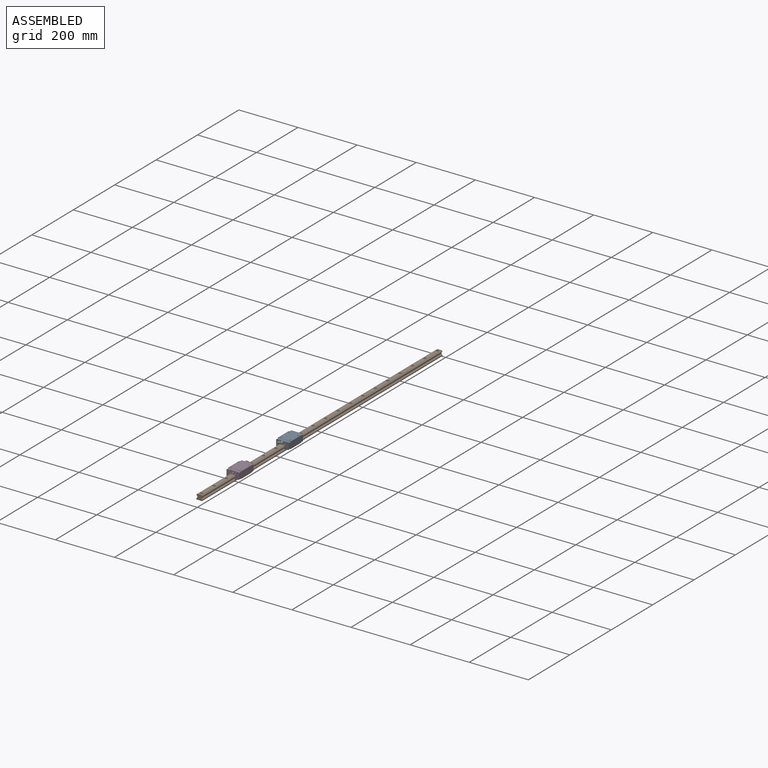
[diagram: assembled view]
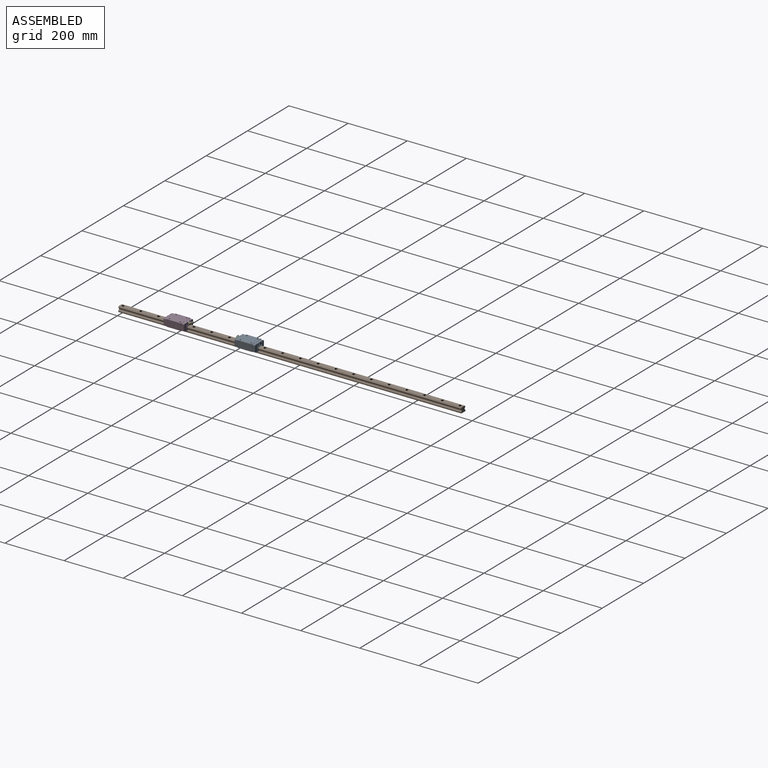
[diagram: assembled view, second angle]
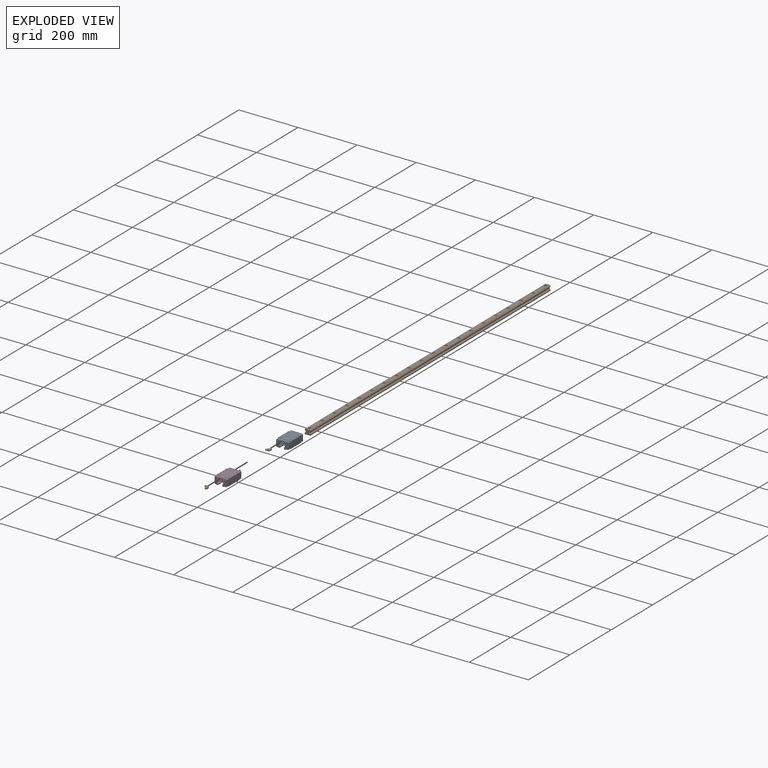
[diagram: exploded view]
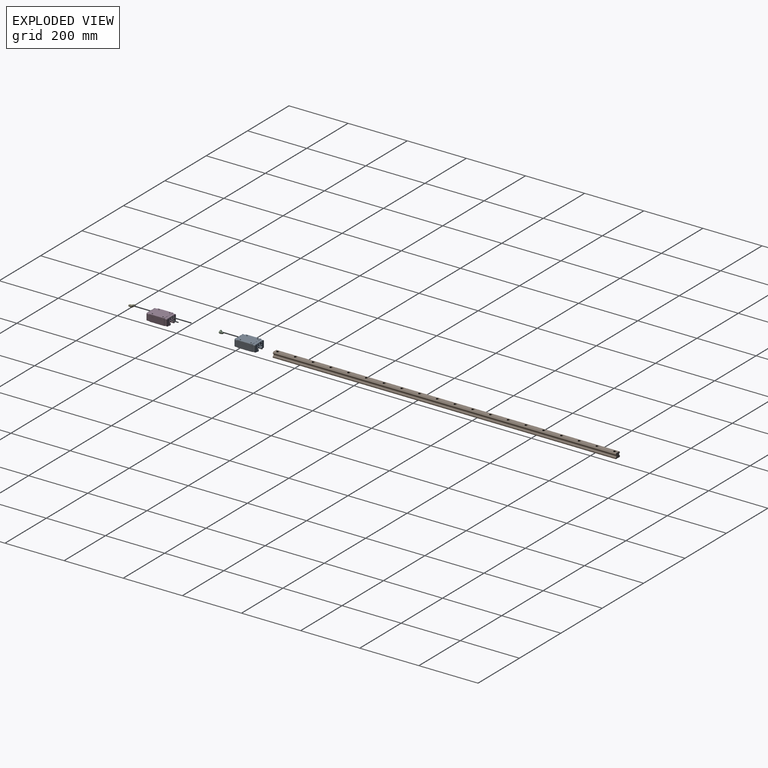
[diagram: exploded view, second angle]
ASSEMBLY  parts=5 mates=4
PART A: 166 faces, bbox 44x74x26 mm
  f0: torus R=1.37mm, axis (0,0,-1), area 5.4mm2, adj f1,f165
  f1: cylinder r=1.71mm len=3.43mm, axis (0,0,-1), area 13.4mm2, adj f0,f34
  f2: torus R=1.37mm, axis (0,0,-1), area 5.4mm2, adj f3,f164
  f3: cylinder r=1.71mm len=3.43mm, axis (0,0,-1), area 13.4mm2, adj f2,f34
  f4: torus R=1.37mm, axis (0,0,-1), area 5.4mm2, adj f5,f163
  f5: cylinder r=1.71mm len=3.43mm, axis (0,0,-1), area 13.4mm2, adj f4,f35
  f6: torus R=1.37mm, axis (0,0,-1), area 5.4mm2, adj f7,f162
  f7: cylinder r=1.71mm len=3.43mm, axis (0,0,-1), area 13.4mm2, adj f6,f35
  f8: cone r=1732.05mm half-angle=60deg, axis (0,1,0), area 21.9mm2, adj f9
  f9: cylinder r=2.46mm len=5.46mm, axis (0,1,0), area 84.3mm2, adj f8,f10
  f10: cone r=2.46mm half-angle=45deg, axis (0,1,0), area 13.1mm2, adj f9,f36
  f11: cone r=2.46mm half-angle=60deg, axis (0,-1,0), area 21.9mm2, adj f12
  f12: cylinder r=2.46mm len=5.46mm, axis (0,1,0), area 84.3mm2, adj f11,f13
  f13: cone r=3mm half-angle=45deg, axis (0,-1,0), area 13.1mm2, adj f12,f37
  f14: cylinder r=2.25mm len=4.5mm, axis (0,1,0), area 13.8mm2, adj f15,f36
  f15: torus R=1.93mm, axis (0,1,0), area 6.8mm2, adj f14,f58
  f16: torus R=1.93mm, axis (0,1,0), area 6.8mm2, adj f17,f121
  f17: cylinder r=2.25mm len=4.5mm, axis (0,1,0), area 13.8mm2, adj f16,f37
  f18: cylinder r=2.25mm len=4.5mm, axis (0,1,0), area 13.8mm2, adj f19,f36
  f19: torus R=1.93mm, axis (0,1,0), area 6.8mm2, adj f18,f59
  f20: torus R=1.93mm, axis (0,1,0), area 6.8mm2, adj f21,f120
  f21: cylinder r=2.25mm len=4.5mm, axis (0,1,0), area 13.8mm2, adj f20,f37
  f22: cone r=2.07mm half-angle=60deg, axis (0,0,1), area 15.5mm2, adj f23
  f23: cylinder r=2.07mm len=6.77mm, axis (0,0,-1), area 87.9mm2, adj f22,f24
  f24: cone r=2.5mm half-angle=45deg, axis (0,0,1), area 8.8mm2, adj f23,f70
  f25: cone r=2.07mm half-angle=60deg, axis (0,0,1), area 15.5mm2, adj f26
  f26: cylinder r=2.07mm len=6.77mm, axis (0,0,-1), area 87.9mm2, adj f25,f27
  f27: cone r=2.5mm half-angle=45deg, axis (0,0,1), area 8.8mm2, adj f26,f70
  f28: cone r=2.07mm half-angle=60deg, axis (0,0,1), area 15.5mm2, adj f29
  f29: cylinder r=2.07mm len=6.77mm, axis (0,0,-1), area 87.9mm2, adj f28,f30
  f30: cone r=2.5mm half-angle=45deg, axis (0,0,1), area 8.8mm2, adj f29,f71
  f31: cone r=2.07mm half-angle=60deg, axis (0,0,1), area 15.5mm2, adj f32
  f32: cylinder r=2.07mm len=6.77mm, axis (0,0,-1), area 87.9mm2, adj f31,f33
  f33: cone r=2.5mm half-angle=45deg, axis (0,0,1), area 8.8mm2, adj f32,f71
  f34: plane 50.8x7.89mm, normal (0,0,-1), area 382.2mm2, adj f1,f3,f63,f67,f77,f102
  f35: plane 50.8x7.89mm, normal (0,0,-1), area 382.2mm2, adj f5,f7,f62,f66,f78,f101
  f36: plane 42x23.68mm, normal (0,1,0), area 580mm2, adj f10,f14,f18,f38,f39,f41,f46,f47
  f37: plane 42x23.68mm, normal (0,-1,0), area 580mm2, adj f13,f17,f21,f42,f43,f45,f50,f52
  f38: plane 9.6x2mm, normal (-0.71,0,0.71), area 26.8mm2, adj f36,f39,f40,f56,f57,f90,f150,f151
  f39: plane 19.68x1mm, normal (-1,0,0), area 19.7mm2, adj f36,f38,f41,f160
  f40: plane 19.68x8.1mm, normal (-1,0,0), area 159.4mm2, adj f38,f41,f90,f161
  f41: plane 9.6x2mm, normal (-0.71,0,-0.71), area 27mm2, adj f36,f39,f40,f65,f90,f160,f161
  f42: plane 9.6x2mm, normal (-0.71,0,0.71), area 26.8mm2, adj f37,f44,f45,f54,f55,f89,f152,f153
  f43: plane 9.6x2mm, normal (-0.71,0,-0.71), area 27mm2, adj f37,f44,f45,f61,f89,f158,f159
  f44: plane 19.68x8.1mm, normal (-1,0,0), area 159.4mm2, adj f42,f43,f89,f158
  f45: plane 19.68x1mm, normal (-1,0,0), area 19.7mm2, adj f37,f42,f43,f159
  f46: plane 9.6x2mm, normal (0.71,0,0.71), area 26.8mm2, adj f36,f48,f49,f56,f57,f90,f150,f151
  f47: plane 9.6x2mm, normal (0.71,0,-0.71), area 27mm2, adj f36,f48,f49,f64,f90,f156,f157
  f48: plane 19.68x1mm, normal (1,0,0), area 19.7mm2, adj f36,f46,f47,f156
  f49: plane 19.68x8.1mm, normal (1,0,0), area 159.4mm2, adj f46,f47,f90,f157
  f50: plane 9.6x2mm, normal (0.71,0,0.71), area 26.8mm2, adj f37,f51,f52,f54,f55,f89,f152,f153
  f51: plane 19.68x8.1mm, normal (1,0,0), area 159.4mm2, adj f50,f53,f89,f154
  f52: plane 19.68x1mm, normal (1,0,0), area 19.7mm2, adj f37,f50,f53,f155
  f53: plane 9.6x2mm, normal (0.71,0,-0.71), area 27mm2, adj f37,f51,f52,f60,f89,f154,f155
  f54: plane 38x8.1mm, normal (0,0,1), area 307.8mm2, adj f42,f50,f89,f152
  f55: plane 38x1mm, normal (0,0,1), area 38mm2, adj f37,f42,f50,f153
  f56: plane 38x1mm, normal (0,0,1), area 38mm2, adj f36,f38,f46,f150
  f57: plane 38x8.1mm, normal (0,0,1), area 307.8mm2, adj f38,f46,f90,f151
  f58: plane 3.85x3.85mm, normal (0,1,0), area 8.2mm2, adj f15,f143,f144,f145,f146,f147,f148
  f59: plane 3.85x3.85mm, normal (0,1,0), area 8.2mm2, adj f19,f136,f137,f138,f139,f140,f141
  f60: plane 11.6x10.52mm, normal (0,0,-1), area 108mm2, adj f37,f53,f66,f69,f89,f98,f101
  f61: plane 11.6x10.52mm, normal (0,0,-1), area 108mm2, adj f37,f43,f67,f69,f89,f97,f102
  f62: plane 7.89x0.07mm, normal (0,-1,0), area 0.5mm2, adj f35,f64,f78,f101
  f63: plane 7.89x0.07mm, normal (0,-1,0), area 0.5mm2, adj f34,f65,f77,f102
  f64: plane 11.6x10.52mm, normal (0,0,-1), area 108mm2, adj f36,f47,f62,f68,f90,f94,f101
  f65: plane 11.6x10.52mm, normal (0,0,-1), area 108mm2, adj f36,f41,f63,f68,f90,f95,f102
  f66: plane 7.89x0.07mm, normal (0,1,0), area 0.5mm2, adj f35,f60,f78,f101
  f67: plane 7.89x0.07mm, normal (0,1,0), area 0.5mm2, adj f34,f61,f77,f102
  f68: plane 24x14.48mm, normal (0,1,0), area 149.3mm2, adj f64,f65,f91,f92,f93,f94,f95,f101
  f69: plane 24x14.48mm, normal (0,-1,0), area 149.3mm2, adj f60,f61,f96,f97,f98,f99,f100,f101
  f70: plane 50.8x13.5mm, normal (0,0,1), area 646.5mm2, adj f24,f27,f84,f85,f89,f90
  f71: plane 50.8x13.5mm, normal (0,0,1), area 646.5mm2, adj f30,f33,f87,f88,f89,f90
  f72: plane 50.8x7mm, normal (-1,0,0), area 355.6mm2, adj f73,f88,f89,f90
  f73: plane 50.8x0.3mm, normal (-0.71,0,-0.71), area 21.6mm2, adj f72,f74,f89,f90
  f74: plane 50.8x15.38mm, normal (-1,0,0), area 781.5mm2, adj f73,f75,f89,f90
  f75: plane 50.8x1mm, normal (-0.71,0,-0.71), area 71.8mm2, adj f74,f76,f89,f90
  f76: plane 50.8x4.4mm, normal (0,0,-1), area 223.5mm2, adj f75,f77,f89,f90
  f77: plane 50.8x0.27mm, normal (1,0,0), area 13.7mm2, adj f34,f63,f67,f76,f89,f90
  f78: plane 50.8x0.27mm, normal (-1,0,0), area 13.7mm2, adj f35,f62,f66,f79,f89,f90
  f79: plane 50.8x4.4mm, normal (0,0,-1), area 223.5mm2, adj f78,f80,f89,f90
  f80: plane 50.8x1mm, normal (0.71,0,-0.71), area 71.8mm2, adj f79,f81,f89,f90
  f81: plane 50.8x15.38mm, normal (1,0,0), area 781.5mm2, adj f80,f82,f89,f90
  f82: plane 50.8x0.3mm, normal (0.71,0,-0.71), area 21.6mm2, adj f81,f83,f89,f90
  f83: plane 50.8x7mm, normal (1,0,0), area 355.6mm2, adj f82,f84,f89,f90
  f84: plane 50.8x1mm, normal (0.71,0,0.71), area 71.8mm2, adj f70,f83,f89,f90
  f85: plane 50.8x0.5mm, normal (-0.71,0,0.71), area 35.9mm2, adj f70,f86,f89,f90
  f86: plane 50.8x14mm, normal (0,0,1), area 711.2mm2, adj f85,f87,f89,f90
  f87: plane 50.8x0.5mm, normal (0.71,0,0.71), area 35.9mm2, adj f71,f86,f89,f90
  f88: plane 50.8x1mm, normal (-0.71,0,0.71), area 71.8mm2, adj f71,f72,f89,f90
  f89: plane 44x24.68mm, normal (0,-1,0), area 73.7mm2, adj f42,f43,f44,f50,f51,f53,f54,f60
  f90: plane 44x24.68mm, normal (0,1,0), area 73.7mm2, adj f38,f40,f41,f46,f47,f49,f57,f64
  f91: plane 2x1mm, normal (-0.71,0,0.71), area 2.8mm2, adj f36,f68,f92,f95
  f92: plane 22x2mm, normal (0,0,1), area 44mm2, adj f36,f68,f91,f93
  f93: plane 2x1mm, normal (0.71,0,0.71), area 2.8mm2, adj f36,f68,f92,f94
  f94: plane 13.48x2mm, normal (1,0,0), area 27mm2, adj f36,f64,f68,f93
  f95: plane 13.48x2mm, normal (-1,0,0), area 27mm2, adj f36,f65,f68,f91
  f96: plane 2x1mm, normal (-0.71,0,0.71), area 2.8mm2, adj f37,f69,f97,f100
  f97: plane 13.48x2mm, normal (-1,0,0), area 27mm2, adj f37,f61,f69,f96
  f98: plane 13.48x2mm, normal (1,0,0), area 27mm2, adj f37,f60,f69,f99
  f99: plane 2x1mm, normal (0.71,0,0.71), area 2.8mm2, adj f37,f69,f98,f100
  f100: plane 22x2mm, normal (0,0,1), area 44mm2, adj f37,f69,f96,f99
  f101: plane 74x1.93mm, normal (-0.71,0,-0.71), area 197.3mm2, adj f35,f60,f62,f64,f66,f68,f69,f103
  f102: plane 74x1.93mm, normal (0.71,0,-0.71), area 197.3mm2, adj f34,f61,f63,f65,f67,f68,f69,f119
  f103: plane 74x2.93mm, normal (-1,0,0), area 216.8mm2, adj f68,f69,f101,f104
  f104: plane 74x1.22mm, normal (-0.71,0,0.71), area 127.2mm2, adj f68,f69,f103,f105
  f105: cylinder r=2.06mm len=74mm, axis (0,1,0), area 192.5mm2, adj f68,f69,f104,f106
  f106: plane 74x0.52mm, normal (-0.71,0,0.71), area 53.9mm2, adj f68,f69,f105,f107
  f107: plane 74x1.33mm, normal (-1,0,0), area 98.5mm2, adj f68,f69,f106,f108
  f108: plane 74x0.53mm, normal (-0.71,0,-0.71), area 55.2mm2, adj f68,f69,f107,f109
  f109: cylinder r=2.06mm len=74mm, axis (0,1,0), area 190.6mm2, adj f68,f69,f108,f110
  f110: plane 74x0.61mm, normal (-0.71,0,-0.71), area 63.6mm2, adj f68,f69,f109,f111
  f111: plane 74x14.32mm, normal (0,0,-1), area 1059.7mm2, adj f68,f69,f110,f112
  f112: plane 74x0.61mm, normal (0.71,0,-0.71), area 63.6mm2, adj f68,f69,f111,f113
  f113: cylinder r=2.06mm len=74mm, axis (0,1,0), area 190.6mm2, adj f68,f69,f112,f114
  f114: plane 74x0.53mm, normal (0.71,0,-0.71), area 55.2mm2, adj f68,f69,f113,f115
  f115: plane 74x1.33mm, normal (1,0,0), area 98.5mm2, adj f68,f69,f114,f116
  f116: plane 74x0.52mm, normal (0.71,0,0.71), area 53.9mm2, adj f68,f69,f115,f117
  f117: cylinder r=2.06mm len=74mm, axis (0,1,0), area 192.5mm2, adj f68,f69,f116,f118
  f118: plane 74x1.22mm, normal (0.71,0,0.71), area 127.2mm2, adj f68,f69,f117,f119
  f119: plane 74x2.93mm, normal (1,0,0), area 216.8mm2, adj f68,f69,f102,f118
  f120: plane 3.85x3.85mm, normal (0,-1,0), area 8.2mm2, adj f20,f122,f123,f124,f125,f126,f127
  f121: plane 3.85x3.85mm, normal (0,-1,0), area 8.2mm2, adj f16,f129,f130,f131,f132,f133,f134
  f122: plane 1x0.65mm, normal (0.5,0,-0.87), area 0.8mm2, adj f120,f123,f127,f128
  f123: plane 1x0.65mm, normal (-0.5,0,-0.87), area 0.8mm2, adj f120,f122,f124,f128
  f124: plane 1.15x0.65mm, normal (-1,0,0), area 0.8mm2, adj f120,f123,f125,f128
  f125: plane 1x0.65mm, normal (-0.5,0,0.87), area 0.8mm2, adj f120,f124,f126,f128
  f126: plane 1x0.65mm, normal (0.5,0,0.87), area 0.8mm2, adj f120,f125,f127,f128
  f127: plane 1.15x0.65mm, normal (1,0,0), area 0.8mm2, adj f120,f122,f126,f128
  f128: plane 2.31x2mm, normal (0,-1,0), area 3.5mm2, adj f122,f123,f124,f125,f126,f127
  f129: plane 1x0.65mm, normal (0.5,0,-0.87), area 0.8mm2, adj f121,f130,f134,f135
  f130: plane 1x0.65mm, normal (-0.5,0,-0.87), area 0.8mm2, adj f121,f129,f131,f135
  f131: plane 1.15x0.65mm, normal (-1,0,0), area 0.8mm2, adj f121,f130,f132,f135
  f132: plane 1x0.65mm, normal (-0.5,0,0.87), area 0.8mm2, adj f121,f131,f133,f135
  f133: plane 1x0.65mm, normal (0.5,0,0.87), area 0.8mm2, adj f121,f132,f134,f135
  f134: plane 1.15x0.65mm, normal (1,0,0), area 0.8mm2, adj f121,f129,f133,f135
  f135: plane 2.31x2mm, normal (0,-1,0), area 3.5mm2, adj f129,f130,f131,f132,f133,f134
  f136: plane 1x0.65mm, normal (0.5,0,-0.87), area 0.8mm2, adj f59,f137,f141,f142
  f137: plane 1.15x0.65mm, normal (1,0,0), area 0.8mm2, adj f59,f136,f138,f142
  f138: plane 1x0.65mm, normal (0.5,0,0.87), area 0.8mm2, adj f59,f137,f139,f142
  f139: plane 1x0.65mm, normal (-0.5,0,0.87), area 0.8mm2, adj f59,f138,f140,f142
  f140: plane 1.15x0.65mm, normal (-1,0,0), area 0.8mm2, adj f59,f139,f141,f142
  f141: plane 1x0.65mm, normal (-0.5,0,-0.87), area 0.8mm2, adj f59,f136,f140,f142
  f142: plane 2.31x2mm, normal (0,1,0), area 3.5mm2, adj f136,f137,f138,f139,f140,f141
  f143: plane 1x0.65mm, normal (0.5,0,-0.87), area 0.8mm2, adj f58,f144,f148,f149
  f144: plane 1.15x0.65mm, normal (1,0,0), area 0.8mm2, adj f58,f143,f145,f149
  f145: plane 1x0.65mm, normal (0.5,0,0.87), area 0.8mm2, adj f58,f144,f146,f149
  f146: plane 1x0.65mm, normal (-0.5,0,0.87), area 0.8mm2, adj f58,f145,f147,f149
  f147: plane 1.15x0.65mm, normal (-1,0,0), area 0.8mm2, adj f58,f146,f148,f149
  f148: plane 1x0.65mm, normal (-0.5,0,-0.87), area 0.8mm2, adj f58,f143,f147,f149
  f149: plane 2.31x2mm, normal (0,1,0), area 3.5mm2, adj f143,f144,f145,f146,f147,f148
  f150: plane 39x0.5mm, normal (0,-1,0), area 19.3mm2, adj f38,f46,f56,f151
  f151: plane 39x0.5mm, normal (0,0.71,0.71), area 27.2mm2, adj f38,f46,f57,f150
  f152: plane 39x0.5mm, normal (0,-0.71,0.71), area 27.2mm2, adj f42,f50,f54,f153
  f153: plane 39x0.5mm, normal (0,1,0), area 19.2mm2, adj f42,f50,f55,f152
  f154: plane 20.68x0.5mm, normal (0.71,-0.71,0), area 14.3mm2, adj f50,f51,f53,f155
  f155: plane 20.68x0.5mm, normal (0,1,0), area 10.1mm2, adj f50,f52,f53,f154
  f156: plane 20.68x0.5mm, normal (0,-1,0), area 10.1mm2, adj f46,f47,f48,f157
  f157: plane 20.68x0.5mm, normal (0.71,0.71,0), area 14.3mm2, adj f46,f47,f49,f156
  f158: plane 20.68x0.5mm, normal (-0.71,-0.71,0), area 14.3mm2, adj f42,f43,f44,f159
  f159: plane 20.68x0.5mm, normal (0,1,0), area 10.1mm2, adj f42,f43,f45,f158
  f160: plane 20.68x0.5mm, normal (0,-1,0), area 10.1mm2, adj f38,f39,f41,f161
  f161: plane 20.68x0.5mm, normal (-0.71,0.71,0), area 14.3mm2, adj f38,f40,f41,f160
  f162: plane 2.74x2.74mm, normal (0,0,-1), area 5.9mm2, adj f6
  f163: plane 2.74x2.74mm, normal (0,0,-1), area 5.9mm2, adj f4
  f164: plane 2.74x2.74mm, normal (0,0,-1), area 5.9mm2, adj f2
  f165: plane 2.74x2.74mm, normal (0,0,-1), area 5.9mm2, adj f0
PART B: 150 faces, bbox 20x1160x18 mm
  f0: plane 10x0.5mm, normal (0.71,0,-0.71), area 6.3mm2, adj f64,f66,f88,f147
  f1: plane 56.68x5mm, normal (0,0,-1), area 274mm2, adj f2,f3,f144,f147
  f2: plane 60x0.5mm, normal (-0.71,0,-0.71), area 40.8mm2, adj f1,f68,f144,f147
  f3: plane 60x0.5mm, normal (0.71,0,-0.71), area 40.8mm2, adj f1,f64,f144,f147
  f4: plane 56.68x5mm, normal (0,0,-1), area 274mm2, adj f5,f6,f141,f144
  f5: plane 60x0.5mm, normal (-0.71,0,-0.71), area 40.8mm2, adj f4,f68,f141,f144
  f6: plane 60x0.5mm, normal (0.71,0,-0.71), area 40.8mm2, adj f4,f64,f141,f144
  f7: plane 56.68x5mm, normal (0,0,-1), area 274mm2, adj f8,f9,f138,f141
  f8: plane 60x0.5mm, normal (-0.71,0,-0.71), area 40.8mm2, adj f7,f68,f138,f141
  f9: plane 60x0.5mm, normal (0.71,0,-0.71), area 40.8mm2, adj f7,f64,f138,f141
  f10: plane 56.68x5mm, normal (0,0,-1), area 274mm2, adj f11,f12,f135,f138
  f11: plane 60x0.5mm, normal (-0.71,0,-0.71), area 40.8mm2, adj f10,f68,f135,f138
  f12: plane 60x0.5mm, normal (0.71,0,-0.71), area 40.8mm2, adj f10,f64,f135,f138
  f13: plane 56.68x5mm, normal (0,0,-1), area 274mm2, adj f14,f15,f132,f135
  f14: plane 60x0.5mm, normal (-0.71,0,-0.71), area 40.8mm2, adj f13,f68,f132,f135
  f15: plane 60x0.5mm, normal (0.71,0,-0.71), area 40.8mm2, adj f13,f64,f132,f135
  f16: plane 56.68x5mm, normal (0,0,-1), area 274mm2, adj f17,f18,f129,f132
  f17: plane 60x0.5mm, normal (-0.71,0,-0.71), area 40.8mm2, adj f16,f68,f129,f132
  f18: plane 60x0.5mm, normal (0.71,0,-0.71), area 40.8mm2, adj f16,f64,f129,f132
  f19: plane 56.68x5mm, normal (0,0,-1), area 274mm2, adj f20,f21,f126,f129
  f20: plane 60x0.5mm, normal (-0.71,0,-0.71), area 40.8mm2, adj f19,f68,f126,f129
  f21: plane 60x0.5mm, normal (0.71,0,-0.71), area 40.8mm2, adj f19,f64,f126,f129
  f22: plane 56.68x5mm, normal (0,0,-1), area 274mm2, adj f23,f24,f123,f126
  f23: plane 60x0.5mm, normal (-0.71,0,-0.71), area 40.8mm2, adj f22,f68,f123,f126
  f24: plane 60x0.5mm, normal (0.71,0,-0.71), area 40.8mm2, adj f22,f64,f123,f126
  f25: plane 56.68x5mm, normal (0,0,-1), area 274mm2, adj f26,f27,f120,f123
  f26: plane 60x0.5mm, normal (-0.71,0,-0.71), area 40.8mm2, adj f25,f68,f120,f123
  f27: plane 60x0.5mm, normal (0.71,0,-0.71), area 40.8mm2, adj f25,f64,f120,f123
  f28: plane 56.68x5mm, normal (0,0,-1), area 274mm2, adj f29,f30,f117,f120
  f29: plane 60x0.5mm, normal (-0.71,0,-0.71), area 40.8mm2, adj f28,f68,f117,f120
  f30: plane 60x0.5mm, normal (0.71,0,-0.71), area 40.8mm2, adj f28,f64,f117,f120
  f31: plane 56.68x5mm, normal (0,0,-1), area 274mm2, adj f32,f33,f114,f117
  f32: plane 60x0.5mm, normal (-0.71,0,-0.71), area 40.8mm2, adj f31,f68,f114,f117
  f33: plane 60x0.5mm, normal (0.71,0,-0.71), area 40.8mm2, adj f31,f64,f114,f117
  f34: plane 56.68x5mm, normal (0,0,-1), area 274mm2, adj f35,f36,f111,f114
  f35: plane 60x0.5mm, normal (-0.71,0,-0.71), area 40.8mm2, adj f34,f68,f111,f114
  f36: plane 60x0.5mm, normal (0.71,0,-0.71), area 40.8mm2, adj f34,f64,f111,f114
  f37: plane 56.68x5mm, normal (0,0,-1), area 274mm2, adj f38,f39,f108,f111
  f38: plane 60x0.5mm, normal (-0.71,0,-0.71), area 40.8mm2, adj f37,f68,f108,f111
  f39: plane 60x0.5mm, normal (0.71,0,-0.71), area 40.8mm2, adj f37,f64,f108,f111
  f40: plane 56.68x5mm, normal (0,0,-1), area 274mm2, adj f41,f42,f105,f108
  f41: plane 60x0.5mm, normal (-0.71,0,-0.71), area 40.8mm2, adj f40,f68,f105,f108
  f42: plane 60x0.5mm, normal (0.71,0,-0.71), area 40.8mm2, adj f40,f64,f105,f108
  f43: plane 56.68x5mm, normal (0,0,-1), area 274mm2, adj f44,f45,f102,f105
  f44: plane 60x0.5mm, normal (-0.71,0,-0.71), area 40.8mm2, adj f43,f68,f102,f105
  f45: plane 60x0.5mm, normal (0.71,0,-0.71), area 40.8mm2, adj f43,f64,f102,f105
  f46: plane 56.68x5mm, normal (0,0,-1), area 274mm2, adj f47,f48,f99,f102
  f47: plane 60x0.5mm, normal (-0.71,0,-0.71), area 40.8mm2, adj f46,f68,f99,f102
  f48: plane 60x0.5mm, normal (0.71,0,-0.71), area 40.8mm2, adj f46,f64,f99,f102
  f49: plane 56.68x5mm, normal (0,0,-1), area 274mm2, adj f50,f51,f96,f99
  f50: plane 60x0.5mm, normal (-0.71,0,-0.71), area 40.8mm2, adj f49,f68,f96,f99
  f51: plane 60x0.5mm, normal (0.71,0,-0.71), area 40.8mm2, adj f49,f64,f96,f99
  f52: plane 56.68x5mm, normal (0,0,-1), area 274mm2, adj f53,f54,f93,f96
  f53: plane 60x0.5mm, normal (-0.71,0,-0.71), area 40.8mm2, adj f52,f68,f93,f96
  f54: plane 60x0.5mm, normal (0.71,0,-0.71), area 40.8mm2, adj f52,f64,f93,f96
  f55: plane 56.68x5mm, normal (0,0,-1), area 274mm2, adj f56,f57,f90,f93
  f56: plane 60x0.5mm, normal (-0.71,0,-0.71), area 40.8mm2, adj f55,f68,f90,f93
  f57: plane 60x0.5mm, normal (0.71,0,-0.71), area 40.8mm2, adj f55,f64,f90,f93
  f58: plane 8.34x5mm, normal (0,0,-1), area 37mm2, adj f59,f65,f89,f90
  f59: plane 10x0.5mm, normal (-0.71,0,-0.71), area 6.3mm2, adj f58,f68,f89,f90
  f60: plane 1160x2.93mm, normal (-1,0,0), area 3398mm2, adj f61,f87,f88,f89
  f61: plane 1160x3.45mm, normal (-0.71,0,0.71), area 5659.5mm2, adj f60,f62,f88,f89
  f62: plane 1160x3mm, normal (-1,0,0), area 3480.1mm2, adj f61,f63,f88,f89
  f63: plane 1160x1mm, normal (-0.71,0,-0.71), area 1640.5mm2, adj f62,f64,f88,f89
  f64: plane 1160x6mm, normal (0,0,-1), area 6960mm2, adj f0,f3,f6,f9,f12,f15,f18,f21
  f65: plane 10x0.5mm, normal (0.71,0,-0.71), area 6.3mm2, adj f58,f64,f89,f90
  f66: plane 8.34x5mm, normal (0,0,-1), area 37mm2, adj f0,f67,f88,f147
  f67: plane 10x0.5mm, normal (-0.71,0,-0.71), area 6.3mm2, adj f66,f68,f88,f147
  f68: plane 1160x6mm, normal (0,0,-1), area 6960mm2, adj f2,f5,f8,f11,f14,f17,f20,f23
  f69: plane 1160x1mm, normal (0.71,0,-0.71), area 1640.5mm2, adj f68,f70,f88,f89
  f70: plane 1160x3mm, normal (1,0,0), area 3480.1mm2, adj f69,f71,f88,f89
  f71: plane 1160x3.45mm, normal (0.71,0,0.71), area 5659.5mm2, adj f70,f72,f88,f89
  f72: plane 1160x2.93mm, normal (1,0,0), area 3398mm2, adj f71,f73,f88,f89
  f73: plane 1160x1.22mm, normal (0.71,0,-0.71), area 1996.3mm2, adj f72,f74,f88,f89
  f74: cylinder r=2.06mm len=1160mm, axis (0,-1,0), area 3002.1mm2, adj f73,f75,f88,f89
  f75: plane 1160x0.53mm, normal (0.7,0,-0.72), area 854.9mm2, adj f74,f76,f88,f89
  f76: plane 1160x1.33mm, normal (1,0,0), area 1543.8mm2, adj f75,f77,f88,f89
  f77: plane 1160x0.53mm, normal (0.71,0,0.71), area 865.1mm2, adj f76,f78,f88,f89
  f78: cylinder r=2.06mm len=1160mm, axis (0,-1,0), area 2987.4mm2, adj f77,f79,f88,f89
  f79: plane 1160x0.61mm, normal (0.71,0,0.71), area 997.2mm2, adj f78,f80,f88,f89
  f80: plane 1160x14.32mm, normal (0,0,1), area 15193.6mm2, adj f79,f81,f88,f89,f92,f95,f98,f101
  f81: plane 1160x0.61mm, normal (-0.71,0,0.71), area 997.2mm2, adj f80,f82,f88,f89
  f82: cylinder r=2.06mm len=1160mm, axis (0,-1,0), area 2987.4mm2, adj f81,f83,f88,f89
  f83: plane 1160x0.53mm, normal (-0.71,0,0.71), area 865.1mm2, adj f82,f84,f88,f89
  f84: plane 1160x1.33mm, normal (-1,0,0), area 1543.8mm2, adj f83,f85,f88,f89
  f85: plane 1160x0.53mm, normal (-0.7,0,-0.72), area 854.9mm2, adj f84,f86,f88,f89
  f86: cylinder r=2.06mm len=1160mm, axis (0,-1,0), area 3002.1mm2, adj f85,f87,f88,f89
  f87: plane 1160x1.22mm, normal (-0.71,0,-0.71), area 1996.3mm2, adj f60,f86,f88,f89
  f88: plane 20x18mm, normal (0,1,0), area 301.6mm2, adj f0,f60,f61,f62,f63,f64,f66,f67
  f89: plane 20x18mm, normal (0,-1,0), area 301.6mm2, adj f58,f59,f60,f61,f62,f63,f64,f65
  f90: cylinder r=3mm len=9.5mm, axis (0,0,1), area 172mm2, adj f55,f56,f57,f58,f59,f65,f91
  f91: plane 9.5x9.5mm, normal (0,0,1), area 42.6mm2, adj f90,f92
  f92: cylinder r=4.75mm len=9.5mm, axis (0,0,1), area 253.7mm2, adj f80,f91
  f93: cylinder r=3mm len=9.5mm, axis (0,0,1), area 172mm2, adj f52,f53,f54,f55,f56,f57,f94
  f94: plane 9.5x9.5mm, normal (0,0,1), area 42.6mm2, adj f93,f95
  f95: cylinder r=4.75mm len=9.5mm, axis (0,0,1), area 253.7mm2, adj f80,f94
  f96: cylinder r=3mm len=9.5mm, axis (0,0,1), area 172mm2, adj f49,f50,f51,f52,f53,f54,f97
  f97: plane 9.5x9.5mm, normal (0,0,1), area 42.6mm2, adj f96,f98
  f98: cylinder r=4.75mm len=9.5mm, axis (0,0,1), area 253.7mm2, adj f80,f97
  f99: cylinder r=3mm len=9.5mm, axis (0,0,1), area 172mm2, adj f46,f47,f48,f49,f50,f51,f100
  f100: plane 9.5x9.5mm, normal (0,0,1), area 42.6mm2, adj f99,f101
  f101: cylinder r=4.75mm len=9.5mm, axis (0,0,1), area 253.7mm2, adj f80,f100
  f102: cylinder r=3mm len=9.5mm, axis (0,0,1), area 172mm2, adj f43,f44,f45,f46,f47,f48,f103
  f103: plane 9.5x9.5mm, normal (0,0,1), area 42.6mm2, adj f102,f104
  f104: cylinder r=4.75mm len=9.5mm, axis (0,0,1), area 253.7mm2, adj f80,f103
  f105: cylinder r=3mm len=9.5mm, axis (0,0,1), area 172mm2, adj f40,f41,f42,f43,f44,f45,f106
  f106: plane 9.5x9.5mm, normal (0,0,1), area 42.6mm2, adj f105,f107
  f107: cylinder r=4.75mm len=9.5mm, axis (0,0,1), area 253.7mm2, adj f80,f106
  f108: cylinder r=3mm len=9.5mm, axis (0,0,1), area 172mm2, adj f37,f38,f39,f40,f41,f42,f109
  f109: plane 9.5x9.5mm, normal (0,0,1), area 42.6mm2, adj f108,f110
  f110: cylinder r=4.75mm len=9.5mm, axis (0,0,1), area 253.7mm2, adj f80,f109
  f111: cylinder r=3mm len=9.5mm, axis (0,0,1), area 172mm2, adj f34,f35,f36,f37,f38,f39,f112
  f112: plane 9.5x9.5mm, normal (0,0,1), area 42.6mm2, adj f111,f113
  f113: cylinder r=4.75mm len=9.5mm, axis (0,0,1), area 253.7mm2, adj f80,f112
  f114: cylinder r=3mm len=9.5mm, axis (0,0,1), area 172mm2, adj f31,f32,f33,f34,f35,f36,f115
  f115: plane 9.5x9.5mm, normal (0,0,1), area 42.6mm2, adj f114,f116
  f116: cylinder r=4.75mm len=9.5mm, axis (0,0,1), area 253.7mm2, adj f80,f115
  f117: cylinder r=3mm len=9.5mm, axis (0,0,1), area 172mm2, adj f28,f29,f30,f31,f32,f33,f118
  f118: plane 9.5x9.5mm, normal (0,0,1), area 42.6mm2, adj f117,f119
  f119: cylinder r=4.75mm len=9.5mm, axis (0,0,1), area 253.7mm2, adj f80,f118
  f120: cylinder r=3mm len=9.5mm, axis (0,0,1), area 172mm2, adj f25,f26,f27,f28,f29,f30,f121
  f121: plane 9.5x9.5mm, normal (0,0,1), area 42.6mm2, adj f120,f122
  f122: cylinder r=4.75mm len=9.5mm, axis (0,0,1), area 253.7mm2, adj f80,f121
  f123: cylinder r=3mm len=9.5mm, axis (0,0,1), area 172mm2, adj f22,f23,f24,f25,f26,f27,f124
  f124: plane 9.5x9.5mm, normal (0,0,1), area 42.6mm2, adj f123,f125
  f125: cylinder r=4.75mm len=9.5mm, axis (0,0,1), area 253.7mm2, adj f80,f124
  f126: cylinder r=3mm len=9.5mm, axis (0,0,1), area 172mm2, adj f19,f20,f21,f22,f23,f24,f127
  f127: plane 9.5x9.5mm, normal (0,0,1), area 42.6mm2, adj f126,f128
  f128: cylinder r=4.75mm len=9.5mm, axis (0,0,1), area 253.7mm2, adj f80,f127
  f129: cylinder r=3mm len=9.5mm, axis (0,0,1), area 172mm2, adj f16,f17,f18,f19,f20,f21,f130
  f130: plane 9.5x9.5mm, normal (0,0,1), area 42.6mm2, adj f129,f131
  f131: cylinder r=4.75mm len=9.5mm, axis (0,0,1), area 253.7mm2, adj f80,f130
  f132: cylinder r=3mm len=9.5mm, axis (0,0,1), area 172mm2, adj f13,f14,f15,f16,f17,f18,f133
  f133: plane 9.5x9.5mm, normal (0,0,1), area 42.6mm2, adj f132,f134
  f134: cylinder r=4.75mm len=9.5mm, axis (0,0,1), area 253.7mm2, adj f80,f133
  f135: cylinder r=3mm len=9.5mm, axis (0,0,1), area 172mm2, adj f10,f11,f12,f13,f14,f15,f136
  f136: plane 9.5x9.5mm, normal (0,0,1), area 42.6mm2, adj f135,f137
  f137: cylinder r=4.75mm len=9.5mm, axis (0,0,1), area 253.7mm2, adj f80,f136
  f138: cylinder r=3mm len=9.5mm, axis (0,0,1), area 172mm2, adj f7,f8,f9,f10,f11,f12,f139
  f139: plane 9.5x9.5mm, normal (0,0,1), area 42.6mm2, adj f138,f140
  f140: cylinder r=4.75mm len=9.5mm, axis (0,0,1), area 253.7mm2, adj f80,f139
  f141: cylinder r=3mm len=9.5mm, axis (0,0,1), area 172mm2, adj f4,f5,f6,f7,f8,f9,f142
  f142: plane 9.5x9.5mm, normal (0,0,1), area 42.6mm2, adj f141,f143
  f143: cylinder r=4.75mm len=9.5mm, axis (0,0,1), area 253.7mm2, adj f80,f142
  f144: cylinder r=3mm len=9.5mm, axis (0,0,1), area 172mm2, adj f1,f2,f3,f4,f5,f6,f145
  f145: plane 9.5x9.5mm, normal (0,0,1), area 42.6mm2, adj f144,f146
  f146: cylinder r=4.75mm len=9.5mm, axis (0,0,1), area 253.7mm2, adj f80,f145
  f147: cylinder r=3mm len=9.5mm, axis (0,0,1), area 172mm2, adj f0,f1,f2,f3,f66,f67,f148
  f148: plane 9.5x9.5mm, normal (0,0,1), area 42.6mm2, adj f147,f149
  f149: cylinder r=4.75mm len=9.5mm, axis (0,0,1), area 253.7mm2, adj f80,f148
PART C: 38 faces, bbox 15.9x16.7x9.4 mm
  f0: torus R=3.68mm, axis (0.93,-0.37,0), area 13.5mm2, adj f1,f2
  f1: torus R=8.32mm, axis (0.93,-0.37,0), area 26.7mm2, adj f0,f31,f32,f33,f34,f35,f36
  f2: sphere r=3.3mm, area 30mm2, adj f0,f3
  f3: cone r=2.42mm half-angle=18deg, axis (0.93,-0.37,0), area 51mm2, adj f2,f37
  f4: sphere r=1.82mm, area 4.4mm2, adj f37
  f5: cone r=4.62mm half-angle=45deg, axis (0,-1,0), area 0.9mm2, adj f13,f14,f25
  f6: cone r=2.39mm half-angle=45deg, axis (0,1,0), area 14.7mm2, adj f7,f12
  f7: cylinder r=3mm len=6mm, axis (0,1,0), area 82.7mm2, adj f6,f11
  f8: cylinder r=4mm len=8mm, axis (0,1,0), area 77.5mm2, adj f9,f20,f22,f24,f25,f27,f29,f30
  f9: sphere r=4mm, area 81.2mm2, adj f8,f30
  f10: cone r=4.06mm half-angle=45deg, axis (-0.93,0.37,0), area 7.3mm2, adj f30,f31,f32,f33,f34,f35,f36
  f11: plane 9.24x8mm, normal (0,-1,0), area 27.2mm2, adj f7,f13,f14,f15,f16,f17,f18
  f12: plane 4.77x4.77mm, normal (0,-1,0), area 17.9mm2, adj f6
  f13: plane 4.15x2.46mm, normal (-0.5,0,0.87), area 8.7mm2, adj f5,f11,f14,f18,f25,f26,f27
  f14: plane 4.15x2.46mm, normal (0.5,0,0.87), area 8.7mm2, adj f5,f11,f13,f15,f23,f24,f25
  f15: plane 4.76x2.15mm, normal (1,0,0), area 8.7mm2, adj f11,f14,f16,f21,f22,f23,f24
  f16: plane 4.15x2.46mm, normal (0.5,0,-0.87), area 8.7mm2, adj f11,f15,f17,f19,f20,f21,f22
  f17: plane 4.15x2.46mm, normal (-0.5,0,-0.87), area 8.7mm2, adj f11,f16,f18,f19,f20,f28,f29
  f18: plane 4.76x2.15mm, normal (-1,0,0), area 8.7mm2, adj f11,f13,f17,f26,f27,f28,f29
  f19: cone r=4.62mm half-angle=45deg, axis (0,-1,0), area 0.9mm2, adj f16,f17,f20
  f20: plane 4x0.66mm, normal (0,1,0), area 0.4mm2, adj f8,f16,f17,f19
  f21: cone r=4.62mm half-angle=45deg, axis (0,-1,0), area 0.9mm2, adj f15,f16,f22
  f22: plane 3.46x2mm, normal (0,1,0), area 0.4mm2, adj f8,f15,f16,f21
  f23: cone r=4.62mm half-angle=45deg, axis (0,-1,0), area 0.9mm2, adj f14,f15,f24
  f24: plane 3.46x2mm, normal (0,1,0), area 0.4mm2, adj f8,f14,f15,f23
  f25: plane 4x0.66mm, normal (0,1,0), area 0.4mm2, adj f5,f8,f13,f14
  f26: cone r=4.62mm half-angle=45deg, axis (0,-1,0), area 0.9mm2, adj f13,f18,f27
  f27: plane 3.46x2mm, normal (0,1,0), area 0.4mm2, adj f8,f13,f18,f26
  f28: cone r=4.62mm half-angle=45deg, axis (0,-1,0), area 0.9mm2, adj f17,f18,f29
  f29: plane 3.46x2mm, normal (0,1,0), area 0.4mm2, adj f8,f17,f18,f28
  f30: plane 6.89x6.39mm, normal (0.93,-0.37,0), area 15.1mm2, adj f8,f9,f10
  f31: plane 3.5x2.31mm, normal (-0.32,-0.8,0.5), area 7.7mm2, adj f1,f10,f32,f36
  f32: plane 4.18x2.67mm, normal (0,0,1), area 7.7mm2, adj f1,f10,f31,f33
  f33: plane 3.5x2.31mm, normal (0.32,0.8,0.5), area 7.7mm2, adj f1,f10,f32,f34
  f34: plane 3.5x2.31mm, normal (0.32,0.8,-0.5), area 7.7mm2, adj f1,f10,f33,f35
  f35: plane 4.18x2.67mm, normal (0,0,-1), area 7.7mm2, adj f1,f10,f34,f36
  f36: plane 3.5x2.31mm, normal (-0.32,-0.8,-0.5), area 7.7mm2, adj f1,f10,f31,f35
  f37: plane 4.85x4.5mm, normal (-0.93,0.37,0), area 14.5mm2, adj f3,f4
PART D: same geometry as A
PART E: same geometry as C
PLACE A t=(0,233.49,0)mm
PLACE B at identity fixed
PLACE C rot(axis=(1,0,0),180deg) t=(0,658.29,50)mm
PLACE D t=(0,-6.21,0)mm
PLACE E t=(0,-6.21,0)mm
MATE fastened C.f6 <-> A.f8  axis (0,-1,0) through (0,410.89,25)mm
MATE fastened D.f8 <-> E.f6  axis (0,1,0) through (0,241.19,25)mm
MATE slider D.f69 <-> B.f89  axis (0,1,0) through (-7.16,169.19,18)mm
MATE slider A.f69 <-> B.f89  axis (0,1,0) through (-7.16,408.89,18)mm
